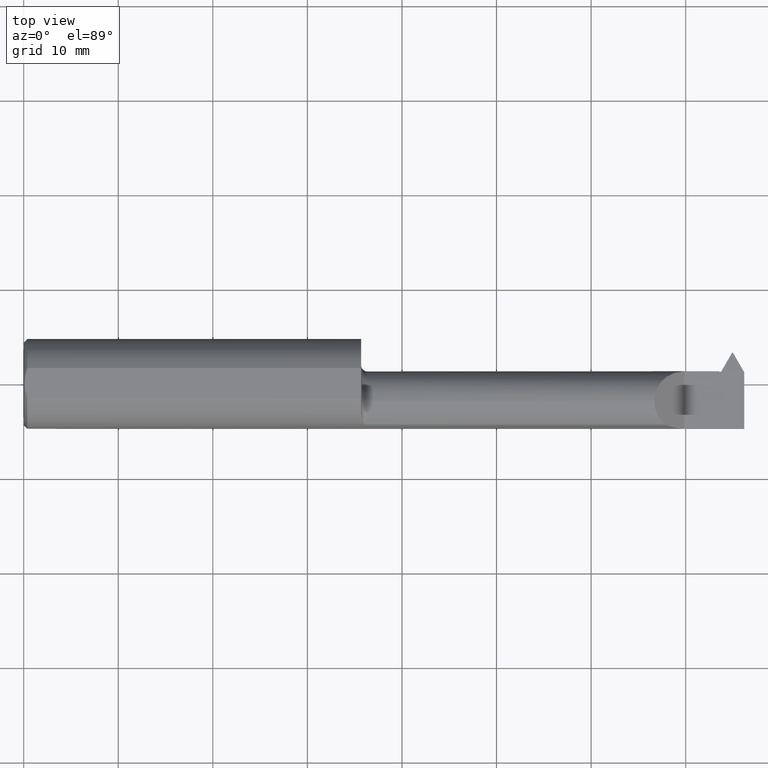
[diagram: clean part render]
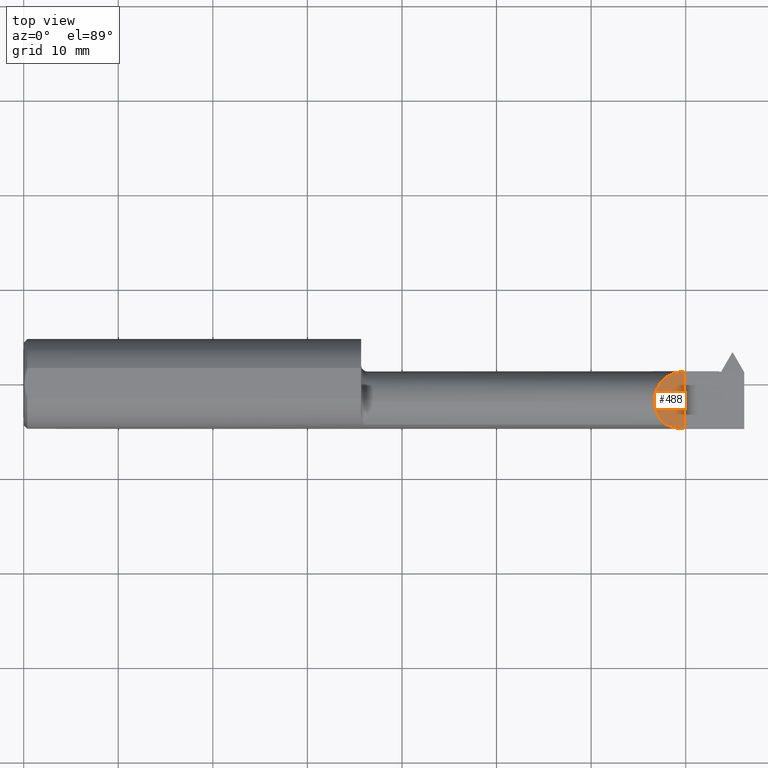
[diagram: same view with one face highlighted and labeled with its STEP entity id]
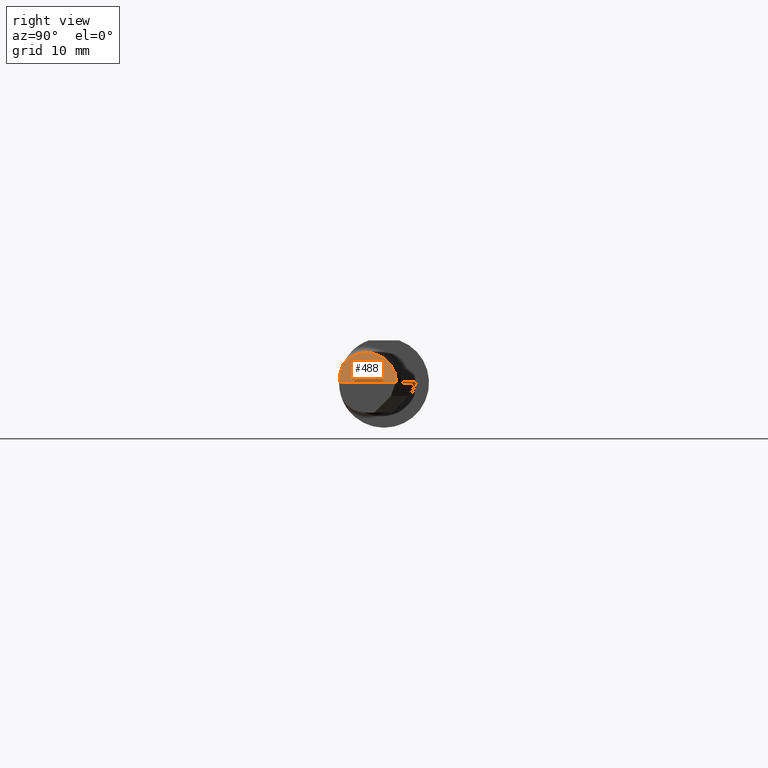
[diagram: same view with one face highlighted and labeled with its STEP entity id]
A machine part, top view. The second image highlights one B-rep face of the part: STEP entity #488.
A second angle (right view) of the same face is appended — the face is thin or edge-on in the first view.
In plain terms, the highlighted planar face has unit normal (-0.7071, 0, -0.7071).
Its self-contained STEP definition (entity closure, byte-faithful):
#30 = DIRECTION ( 'NONE',  ( 0.000000000000000000, -1.000000000000000000, 0.000000000000000000 ) ) ;
#48 = FACE_OUTER_BOUND ( 'NONE', #376, .T. ) ;
#50 = EDGE_CURVE ( 'NONE', #242, #550, #482, .T. ) ;
#85 = CARTESIAN_POINT ( 'NONE',  ( 2.625350000000000517, -0.07234999999999998377, 0.1250000000000000000 ) ) ;
#120 = VERTEX_POINT ( 'NONE', #85 ) ;
#127 = CARTESIAN_POINT ( 'NONE',  ( 2.673280599499922694, -0.1707639599170701628, 0.07706940050007689280 ) ) ;
#131 = DIRECTION ( 'NONE',  ( -0.7071067811865465735, 0.000000000000000000, 0.7071067811865483499 ) ) ;
#142 =( BOUNDED_CURVE ( )  B_SPLINE_CURVE ( 3, ( #853, #181, #170, #922 ),
 .UNSPECIFIED., .F., .F. ) 
 B_SPLINE_CURVE_WITH_KNOTS ( ( 4, 4 ),
 ( 4.715188984043368059, 6.283185307179586232 ),
 .UNSPECIFIED. ) 
 CURVE ( )  GEOMETRIC_REPRESENTATION_ITEM ( )  RATIONAL_B_SPLINE_CURVE ( ( 1.000000000000000000, 0.8053973591226792905, 0.8053973591226792905, 1.000000000000000000 ) ) 
 REPRESENTATION_ITEM ( '' )  );
#170 = CARTESIAN_POINT ( 'NONE',  ( 2.625350000000000517, 0.0007108448279454899175, 0.1250000000000000000 ) ) ;
#177 = CARTESIAN_POINT ( 'NONE',  ( 2.750000000000000444, 0.05264950999903968143, 0.0003499999999995605151 ) ) ;
#178 = EDGE_CURVE ( 'NONE', #120, #727, #411, .T. ) ;
#181 = CARTESIAN_POINT ( 'NONE',  ( 2.676939441571128508, 0.05244493963352150206, 0.07341055842887220240 ) ) ;
#242 = VERTEX_POINT ( 'NONE', #177 ) ;
#260 = ORIENTED_EDGE ( 'NONE', *, *, #361, .T. ) ;
#357 = CARTESIAN_POINT ( 'NONE',  ( 2.574000000000000288, 0.1749999999999999889, 0.1763499999999999790 ) ) ;
#361 = EDGE_CURVE ( 'NONE', #242, #120, #142, .T. ) ;
#374 = EDGE_CURVE ( 'NONE', #550, #727, #954, .T. ) ;
#376 = EDGE_LOOP ( 'NONE', ( #767, #260, #693, #762 ) ) ;
#408 = CARTESIAN_POINT ( 'NONE',  ( 2.750000000000000444, -0.1873496730715054903, 0.0003499999999995605151 ) ) ;
#411 =( BOUNDED_CURVE ( )  B_SPLINE_CURVE ( 3, ( #522, #654, #661, #807 ),
 .UNSPECIFIED., .F., .T. ) 
 B_SPLINE_CURVE_WITH_KNOTS ( ( 4, 4 ),
 ( 0.000000000000000000, 0.9064365498903768081 ),
 .UNSPECIFIED. ) 
 CURVE ( )  GEOMETRIC_REPRESENTATION_ITEM ( )  RATIONAL_B_SPLINE_CURVE ( ( 1.000000000000000000, 0.9326950686634384313, 0.9326950686634384313, 1.000000000000000000 ) ) 
 REPRESENTATION_ITEM ( '' )  );
#428 = CARTESIAN_POINT ( 'NONE',  ( 2.673280599499922694, -0.1707639599170701628, 0.07706940050007689280 ) ) ;
#482 = LINE ( 'NONE', #783, #585 ) ;
#488 = ADVANCED_FACE ( 'NONE', ( #48 ), #734, .F. ) ;
#522 = CARTESIAN_POINT ( 'NONE',  ( 2.625350000000000517, -0.07234999999999998377, 0.1250000000000000000 ) ) ;
#550 = VERTEX_POINT ( 'NONE', #976 ) ;
#585 = VECTOR ( 'NONE', #30, 39.37007874015748143 ) ;
#654 = CARTESIAN_POINT ( 'NONE',  ( 2.625350000000000517, -0.1114715001235034170, 0.1249999999999999861 ) ) ;
#661 = CARTESIAN_POINT ( 'NONE',  ( 2.642479785539522563, -0.1466433954276133433, 0.1078702144604781754 ) ) ;
#693 = ORIENTED_EDGE ( 'NONE', *, *, #178, .T. ) ;
#701 = AXIS2_PLACEMENT_3D ( 'NONE', #357, #876, #131 ) ;
#706 = CARTESIAN_POINT ( 'NONE',  ( 2.697486258657503466, -0.1816884877910426022, 0.05286374134249623852 ) ) ;
#727 = VERTEX_POINT ( 'NONE', #428 ) ;
#734 = PLANE ( 'NONE',  #701 ) ;
#762 = ORIENTED_EDGE ( 'NONE', *, *, #374, .F. ) ;
#767 = ORIENTED_EDGE ( 'NONE', *, *, #50, .F. ) ;
#783 = CARTESIAN_POINT ( 'NONE',  ( 2.750000000000000444, 0.2999999999999999889, 0.0003499999999995605151 ) ) ;
#807 = CARTESIAN_POINT ( 'NONE',  ( 2.673280599499922694, -0.1707639599170701628, 0.07706940050007689280 ) ) ;
#853 = CARTESIAN_POINT ( 'NONE',  ( 2.750000000000000444, 0.05264950999903968143, 0.0003499999999995605151 ) ) ;
#857 = CARTESIAN_POINT ( 'NONE',  ( 2.723443328839087574, -0.1873000608423837643, 0.02690667116091299133 ) ) ;
#876 = DIRECTION ( 'NONE',  ( -0.7071067811865484609, 0.000000000000000000, -0.7071067811865466846 ) ) ;
#922 = CARTESIAN_POINT ( 'NONE',  ( 2.625350000000000517, -0.07234999999999998377, 0.1250000000000000000 ) ) ;
#954 =( BOUNDED_CURVE ( )  B_SPLINE_CURVE ( 3, ( #408, #857, #706, #127 ),
 .UNSPECIFIED., .F., .T. ) 
 B_SPLINE_CURVE_WITH_KNOTS ( ( 4, 4 ),
 ( 4.714257142666967049, 5.136341099405663968 ),
 .UNSPECIFIED. ) 
 CURVE ( )  GEOMETRIC_REPRESENTATION_ITEM ( )  RATIONAL_B_SPLINE_CURVE ( ( 1.000000000000000000, 0.9852087820824332320, 0.9852087820824332320, 1.000000000000000000 ) ) 
 REPRESENTATION_ITEM ( '' )  );
#976 = CARTESIAN_POINT ( 'NONE',  ( 2.750000000000000444, -0.1873496730715054903, 0.0003499999999995605151 ) ) ;